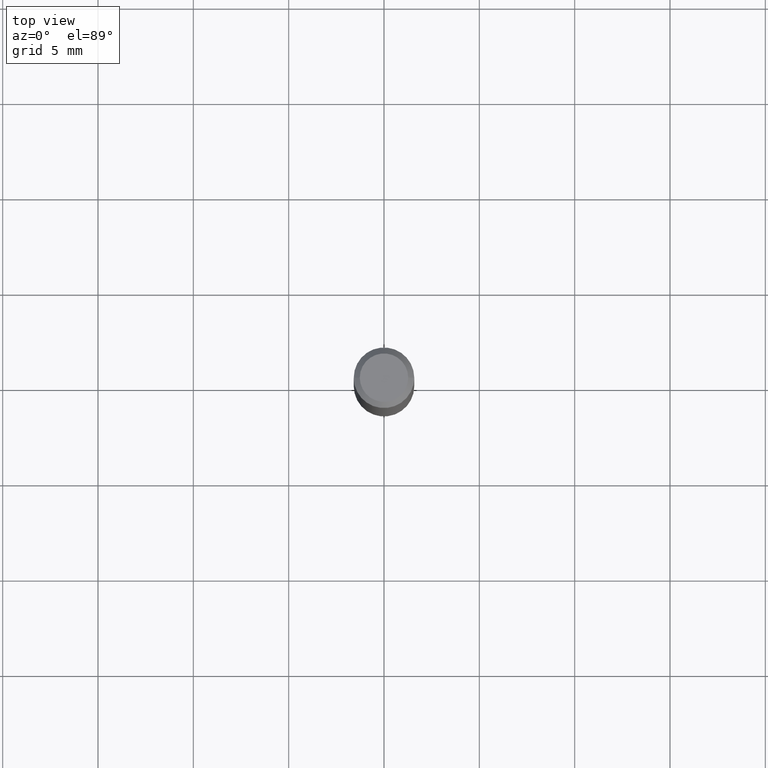
[diagram: clean part render]
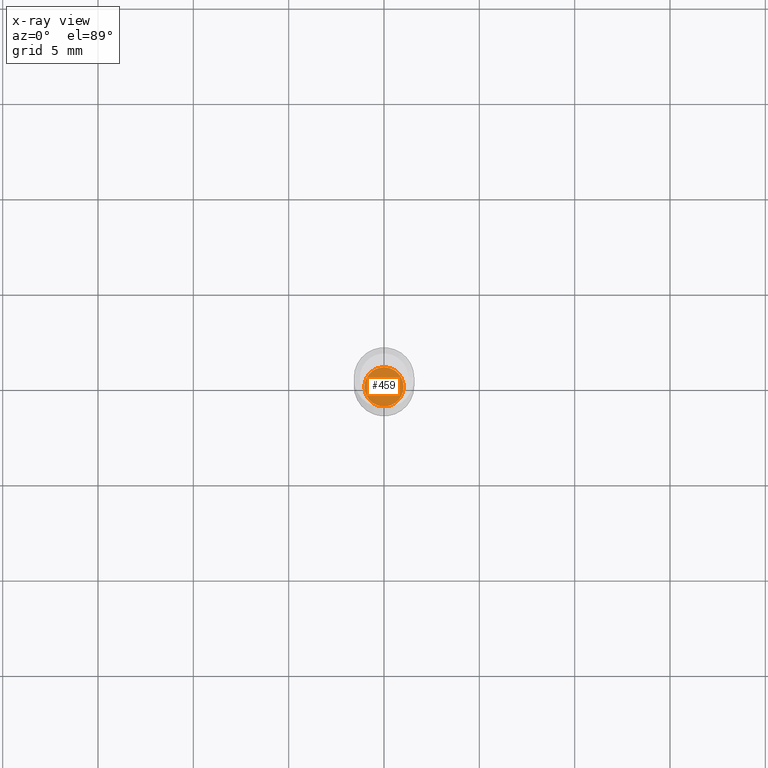
[diagram: x-ray — body ghosted, one internal face saturated and labeled with its STEP entity id]
A machine part, top view, then the same camera in x-ray: the body is ghosted and one INTERNAL B-rep face — a face not visible from any outside direction — is saturated and labeled: STEP entity #459.
In plain terms, the highlighted planar face has unit normal (-0, 0, 1).
Its self-contained STEP definition (entity closure, byte-faithful):
#16 = VERTEX_POINT ( 'NONE', #240 ) ;
#28 = EDGE_CURVE ( 'NONE', #96, #16, #70, .T. ) ;
#39 = AXIS2_PLACEMENT_3D ( 'NONE', #256, #71, #220 ) ;
#40 = EDGE_CURVE ( 'NONE', #16, #96, #476, .T. ) ;
#48 = AXIS2_PLACEMENT_3D ( 'NONE', #186, #450, #411 ) ;
#70 = CIRCLE ( 'NONE', #153, 0.04050000000000000128 ) ;
#71 = DIRECTION ( 'NONE',  ( -2.438088387897960049E-29, 3.491481338843145188E-15, 1.000000000000000000 ) ) ;
#89 = CARTESIAN_POINT ( 'NONE',  ( 2.690015686803650369E-29, -3.840629472727460101E-15, -1.100000000000000089 ) ) ;
#96 = VERTEX_POINT ( 'NONE', #329 ) ;
#128 = EDGE_LOOP ( 'NONE', ( #372, #209 ) ) ;
#138 = DIRECTION ( 'NONE',  ( 1.000000000000000000, -6.982962677686261189E-15, 0.000000000000000000 ) ) ;
#153 = AXIS2_PLACEMENT_3D ( 'NONE', #89, #285, #138 ) ;
#178 = FACE_OUTER_BOUND ( 'NONE', #128, .T. ) ;
#186 = CARTESIAN_POINT ( 'NONE',  ( 2.690015686803650369E-29, -3.840629472727460101E-15, -1.100000000000000089 ) ) ;
#209 = ORIENTED_EDGE ( 'NONE', *, *, #40, .F. ) ;
#220 = DIRECTION ( 'NONE',  ( 1.000000000000000000, -6.982962677686265922E-15, 4.876176775795935793E-29 ) ) ;
#240 = CARTESIAN_POINT ( 'NONE',  ( -0.04050000000000000128, -3.550210437570508464E-15, -1.100000000000000089 ) ) ;
#256 = CARTESIAN_POINT ( 'NONE',  ( 2.690015686803650369E-29, -3.840629472727460101E-15, -1.100000000000000089 ) ) ;
#285 = DIRECTION ( 'NONE',  ( -2.445468806185136597E-29, 3.491481338843145583E-15, 1.000000000000000000 ) ) ;
#329 = CARTESIAN_POINT ( 'NONE',  ( 0.04050000000000000128, -4.123439461173753935E-15, -1.100000000000000089 ) ) ;
#372 = ORIENTED_EDGE ( 'NONE', *, *, #28, .F. ) ;
#411 = DIRECTION ( 'NONE',  ( 1.000000000000000000, -6.982962677686261189E-15, 0.000000000000000000 ) ) ;
#450 = DIRECTION ( 'NONE',  ( -2.445468806185136597E-29, 3.491481338843145583E-15, 1.000000000000000000 ) ) ;
#459 = ADVANCED_FACE ( 'NONE', ( #178 ), #480, .F. ) ;
#476 = CIRCLE ( 'NONE', #48, 0.04050000000000000128 ) ;
#480 = PLANE ( 'NONE',  #39 ) ;